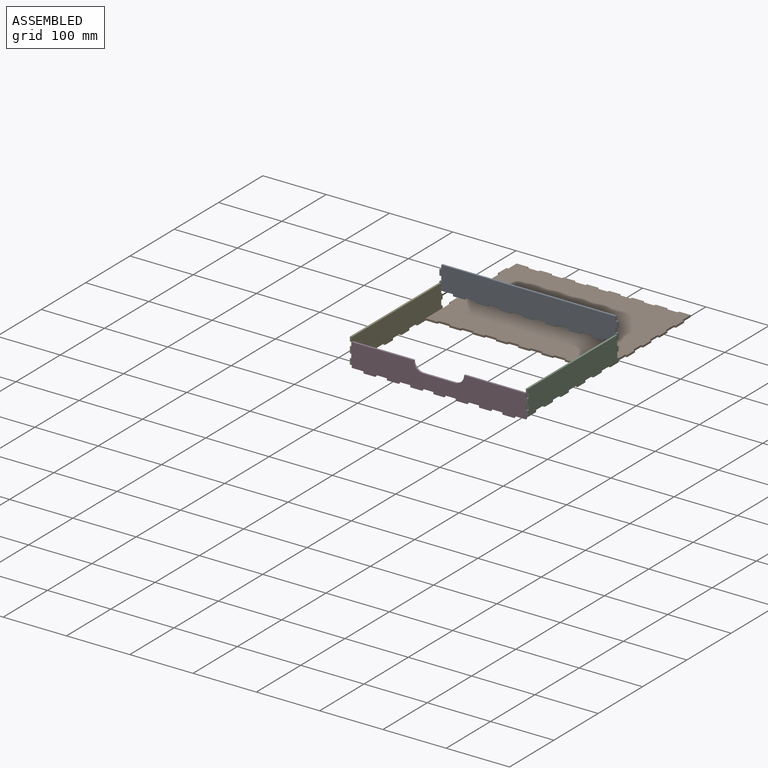
[diagram: assembled view]
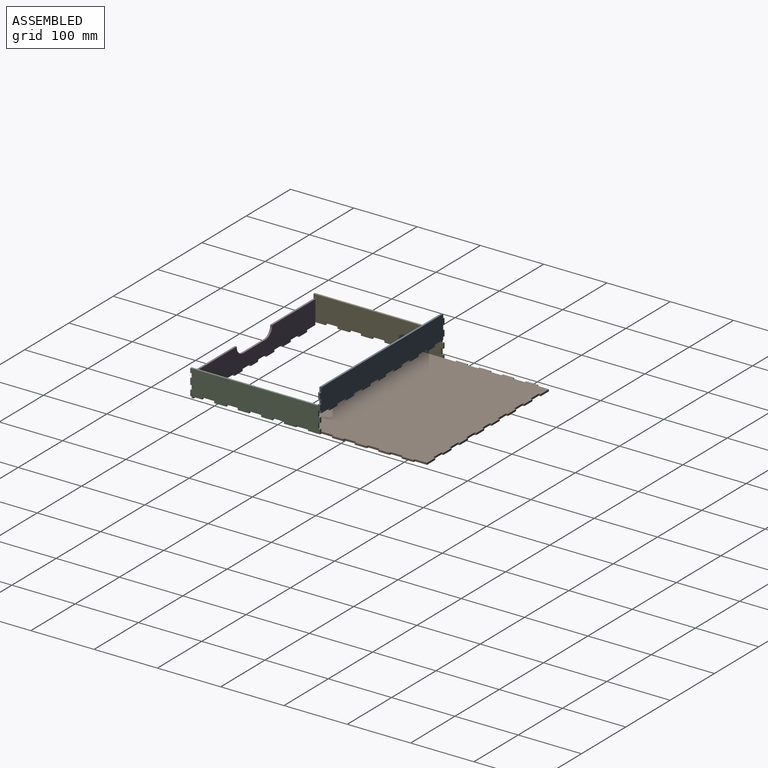
[diagram: assembled view, second angle]
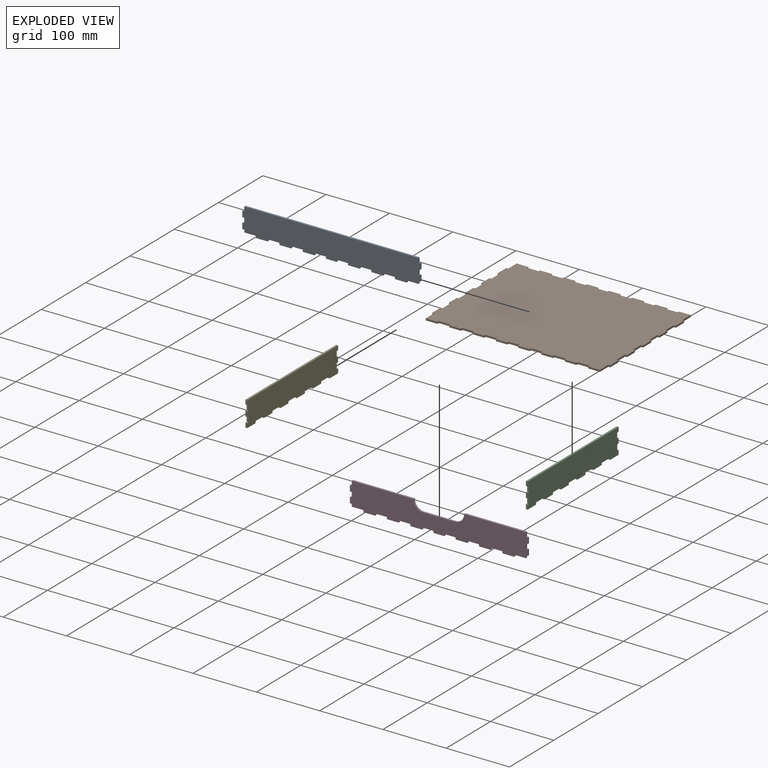
[diagram: exploded view]
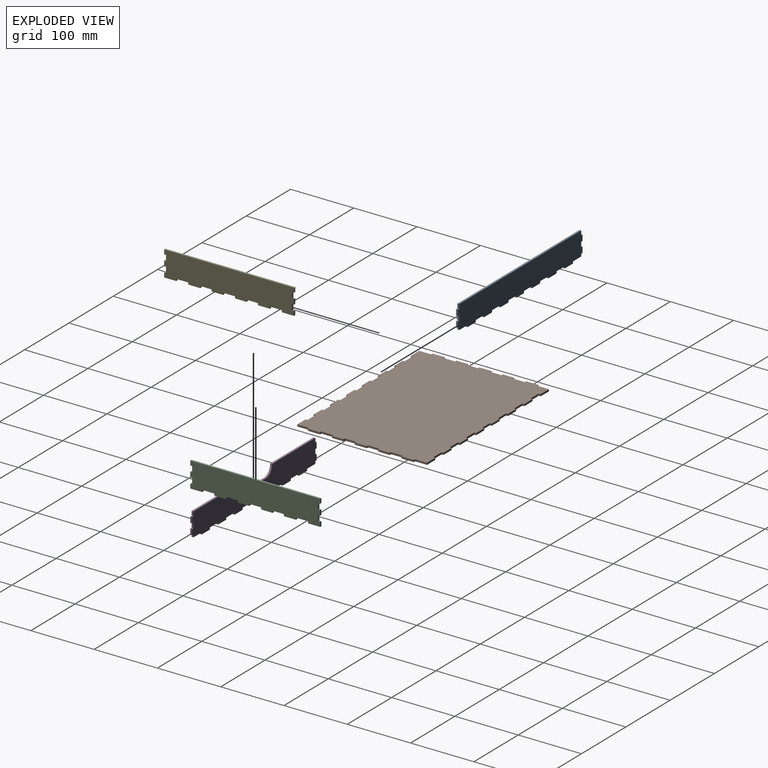
[diagram: exploded view, second angle]
ASSEMBLY  parts=5 mates=4
PART A: 50 faces, bbox 281x3x40 mm
  f0: plane 3x3mm, normal (1,0,0), area 9mm2, adj f1,f47,f48,f49
  f1: plane 18.5x3mm, normal (0,0,-1), area 55.5mm2, adj f0,f2,f48,f49
  f2: plane 4x3mm, normal (1,0,0), area 12mm2, adj f1,f3,f48,f49
  f3: plane 3x3mm, normal (0,0,-1), area 9mm2, adj f2,f4,f48,f49
  f4: plane 9x3mm, normal (1,0,0), area 27mm2, adj f3,f5,f48,f49
  f5: plane 3x3mm, normal (0,0,1), area 9mm2, adj f4,f6,f48,f49
  f6: plane 8x3mm, normal (1,0,0), area 24mm2, adj f5,f7,f48,f49
  f7: plane 3x3mm, normal (0,0,-1), area 9mm2, adj f6,f8,f48,f49
  f8: plane 9x3mm, normal (1,0,0), area 27mm2, adj f7,f9,f48,f49
  f9: plane 3x3mm, normal (0,0,1), area 9mm2, adj f8,f10,f48,f49
  f10: plane 7x3mm, normal (1,0,0), area 21mm2, adj f9,f11,f48,f49
  f11: plane 275x3mm, normal (0,0,1), area 825mm2, adj f10,f12,f48,f49
  f12: plane 7x3mm, normal (-1,0,0), area 21mm2, adj f11,f13,f48,f49
  f13: plane 3x3mm, normal (0,0,1), area 9mm2, adj f12,f14,f48,f49
  f14: plane 9x3mm, normal (-1,0,0), area 27mm2, adj f13,f15,f48,f49
  f15: plane 3x3mm, normal (0,0,-1), area 9mm2, adj f14,f16,f48,f49
  f16: plane 8x3mm, normal (-1,0,0), area 24mm2, adj f15,f17,f48,f49
  f17: plane 3x3mm, normal (0,0,1), area 9mm2, adj f16,f18,f48,f49
  f18: plane 9x3mm, normal (-1,0,0), area 27mm2, adj f17,f19,f48,f49
  f19: plane 3x3mm, normal (0,0,-1), area 9mm2, adj f18,f20,f48,f49
  f20: plane 4x3mm, normal (-1,0,0), area 12mm2, adj f19,f21,f48,f49
  f21: plane 18.5x3mm, normal (0,0,-1), area 55.5mm2, adj f20,f22,f48,f49
  f22: plane 3x3mm, normal (-1,0,0), area 9mm2, adj f21,f23,f48,f49
  f23: plane 18.5x3mm, normal (0,0,-1), area 55.5mm2, adj f22,f24,f48,f49
  f24: plane 3x3mm, normal (1,0,0), area 9mm2, adj f23,f25,f48,f49
  f25: plane 18.5x3mm, normal (0,0,-1), area 55.5mm2, adj f24,f26,f48,f49
  f26: plane 3x3mm, normal (-1,0,0), area 9mm2, adj f25,f27,f48,f49
  f27: plane 18.5x3mm, normal (0,0,-1), area 55.5mm2, adj f26,f28,f48,f49
  f28: plane 3x3mm, normal (1,0,0), area 9mm2, adj f27,f29,f48,f49
  f29: plane 18.5x3mm, normal (0,0,-1), area 55.5mm2, adj f28,f30,f48,f49
  f30: plane 3x3mm, normal (-1,0,0), area 9mm2, adj f29,f31,f48,f49
  f31: plane 18.5x3mm, normal (0,0,-1), area 55.5mm2, adj f30,f32,f48,f49
  f32: plane 3x3mm, normal (1,0,0), area 9mm2, adj f31,f33,f48,f49
  f33: plane 18x3mm, normal (0,0,-1), area 54mm2, adj f32,f34,f48,f49
  f34: plane 3x3mm, normal (-1,0,0), area 9mm2, adj f33,f35,f48,f49
  f35: plane 17x3mm, normal (0,0,-1), area 51mm2, adj f34,f36,f48,f49
  f36: plane 3x3mm, normal (1,0,0), area 9mm2, adj f35,f37,f48,f49
  f37: plane 18x3mm, normal (0,0,-1), area 54mm2, adj f36,f38,f48,f49
  f38: plane 3x3mm, normal (-1,0,0), area 9mm2, adj f37,f39,f48,f49
  f39: plane 18.5x3mm, normal (0,0,-1), area 55.5mm2, adj f38,f40,f48,f49
  f40: plane 3x3mm, normal (1,0,0), area 9mm2, adj f39,f41,f48,f49
  f41: plane 18.5x3mm, normal (0,0,-1), area 55.5mm2, adj f40,f42,f48,f49
  f42: plane 3x3mm, normal (-1,0,0), area 9mm2, adj f41,f43,f48,f49
  f43: plane 18.5x3mm, normal (0,0,-1), area 55.5mm2, adj f42,f44,f48,f49
  f44: plane 3x3mm, normal (1,0,0), area 9mm2, adj f43,f45,f48,f49
  f45: plane 18.5x3mm, normal (0,0,-1), area 55.5mm2, adj f44,f46,f48,f49
  f46: plane 3x3mm, normal (-1,0,0), area 9mm2, adj f45,f47,f48,f49
  f47: plane 18.5x3mm, normal (0,0,-1), area 55.5mm2, adj f0,f46,f48,f49
  f48: plane 281x40mm, normal (0,-1,0), area 10667mm2, adj f0,f1,f2,f3,f4,f5,f6,f7
  f49: plane 281x40mm, normal (0,1,0), area 10667mm2, adj f0,f1,f2,f3,f4,f5,f6,f7
PART B: 102 faces, bbox 281x205x3 mm
  f0: plane 19x3mm, normal (-1,0,0), area 57mm2, adj f1,f99,f100,f101
  f1: plane 3x3mm, normal (0,1,0), area 9mm2, adj f0,f2,f100,f101
  f2: plane 19x3mm, normal (-1,0,0), area 57mm2, adj f1,f3,f100,f101
  f3: plane 3x3mm, normal (0,-1,0), area 9mm2, adj f2,f4,f100,f101
  f4: plane 19x3mm, normal (-1,0,0), area 57mm2, adj f3,f5,f100,f101
  f5: plane 3x3mm, normal (0,1,0), area 9mm2, adj f4,f6,f100,f101
  f6: plane 18x3mm, normal (-1,0,0), area 54mm2, adj f5,f7,f100,f101
  f7: plane 3x3mm, normal (0,-1,0), area 9mm2, adj f6,f8,f100,f101
  f8: plane 18x3mm, normal (-1,0,0), area 54mm2, adj f7,f9,f100,f101
  f9: plane 3x3mm, normal (0,1,0), area 9mm2, adj f8,f10,f100,f101
  f10: plane 19x3mm, normal (-1,0,0), area 57mm2, adj f9,f11,f100,f101
  f11: plane 3x3mm, normal (0,-1,0), area 9mm2, adj f10,f12,f100,f101
  f12: plane 18x3mm, normal (-1,0,0), area 54mm2, adj f11,f13,f100,f101
  f13: plane 3x3mm, normal (0,1,0), area 9mm2, adj f12,f14,f100,f101
  f14: plane 18x3mm, normal (-1,0,0), area 54mm2, adj f13,f15,f100,f101
  f15: plane 3x3mm, normal (0,-1,0), area 9mm2, adj f14,f16,f100,f101
  f16: plane 19x3mm, normal (-1,0,0), area 57mm2, adj f15,f17,f100,f101
  f17: plane 3x3mm, normal (0,1,0), area 9mm2, adj f16,f18,f100,f101
  f18: plane 19x3mm, normal (-1,0,0), area 57mm2, adj f17,f19,f100,f101
  f19: plane 3x3mm, normal (0,-1,0), area 9mm2, adj f18,f20,f100,f101
  f20: plane 19x3mm, normal (-1,0,0), area 57mm2, adj f19,f21,f100,f101
  f21: plane 18.5x3mm, normal (0,-1,0), area 55.5mm2, adj f20,f22,f100,f101
  f22: plane 3x3mm, normal (1,0,0), area 9mm2, adj f21,f23,f100,f101
  f23: plane 18.5x3mm, normal (0,-1,0), area 55.5mm2, adj f22,f24,f100,f101
  f24: plane 3x3mm, normal (-1,0,0), area 9mm2, adj f23,f25,f100,f101
  f25: plane 18.5x3mm, normal (0,-1,0), area 55.5mm2, adj f24,f26,f100,f101
  f26: plane 3x3mm, normal (1,0,0), area 9mm2, adj f25,f27,f100,f101
  f27: plane 18.5x3mm, normal (0,-1,0), area 55.5mm2, adj f26,f28,f100,f101
  f28: plane 3x3mm, normal (-1,0,0), area 9mm2, adj f27,f29,f100,f101
  f29: plane 18.5x3mm, normal (0,-1,0), area 55.5mm2, adj f28,f30,f100,f101
  f30: plane 3x3mm, normal (1,0,0), area 9mm2, adj f29,f31,f100,f101
  f31: plane 18.5x3mm, normal (0,-1,0), area 55.5mm2, adj f30,f32,f100,f101
  f32: plane 3x3mm, normal (-1,0,0), area 9mm2, adj f31,f33,f100,f101
  f33: plane 18x3mm, normal (0,-1,0), area 54mm2, adj f32,f34,f100,f101
  f34: plane 3x3mm, normal (1,0,0), area 9mm2, adj f33,f35,f100,f101
  f35: plane 17x3mm, normal (0,-1,0), area 51mm2, adj f34,f36,f100,f101
  f36: plane 3x3mm, normal (-1,0,0), area 9mm2, adj f35,f37,f100,f101
  f37: plane 18x3mm, normal (0,-1,0), area 54mm2, adj f36,f38,f100,f101
  f38: plane 3x3mm, normal (1,0,0), area 9mm2, adj f37,f39,f100,f101
  f39: plane 18.5x3mm, normal (0,-1,0), area 55.5mm2, adj f38,f40,f100,f101
  f40: plane 3x3mm, normal (-1,0,0), area 9mm2, adj f39,f41,f100,f101
  f41: plane 18.5x3mm, normal (0,-1,0), area 55.5mm2, adj f40,f42,f100,f101
  f42: plane 3x3mm, normal (1,0,0), area 9mm2, adj f41,f43,f100,f101
  f43: plane 18.5x3mm, normal (0,-1,0), area 55.5mm2, adj f42,f44,f100,f101
  f44: plane 3x3mm, normal (-1,0,0), area 9mm2, adj f43,f45,f100,f101
  f45: plane 18.5x3mm, normal (0,-1,0), area 55.5mm2, adj f44,f46,f100,f101
  f46: plane 3x3mm, normal (1,0,0), area 9mm2, adj f45,f47,f100,f101
  f47: plane 18.5x3mm, normal (0,-1,0), area 55.5mm2, adj f46,f48,f100,f101
  f48: plane 3x3mm, normal (-1,0,0), area 9mm2, adj f47,f49,f100,f101
  f49: plane 18.5x3mm, normal (0,-1,0), area 55.5mm2, adj f48,f50,f100,f101
  f50: plane 19x3mm, normal (1,0,0), area 57mm2, adj f49,f51,f100,f101
  f51: plane 3x3mm, normal (0,-1,0), area 9mm2, adj f50,f52,f100,f101
  f52: plane 19x3mm, normal (1,0,0), area 57mm2, adj f51,f53,f100,f101
  f53: plane 3x3mm, normal (0,1,0), area 9mm2, adj f52,f54,f100,f101
  f54: plane 19x3mm, normal (1,0,0), area 57mm2, adj f53,f55,f100,f101
  f55: plane 3x3mm, normal (0,-1,0), area 9mm2, adj f54,f56,f100,f101
  f56: plane 18x3mm, normal (1,0,0), area 54mm2, adj f55,f57,f100,f101
  f57: plane 3x3mm, normal (0,1,0), area 9mm2, adj f56,f58,f100,f101
  f58: plane 18x3mm, normal (1,0,0), area 54mm2, adj f57,f59,f100,f101
  f59: plane 3x3mm, normal (0,-1,0), area 9mm2, adj f58,f60,f100,f101
  f60: plane 19x3mm, normal (1,0,0), area 57mm2, adj f59,f61,f100,f101
  f61: plane 3x3mm, normal (0,1,0), area 9mm2, adj f60,f62,f100,f101
  f62: plane 18x3mm, normal (1,0,0), area 54mm2, adj f61,f63,f100,f101
  f63: plane 3x3mm, normal (0,-1,0), area 9mm2, adj f62,f64,f100,f101
  f64: plane 18x3mm, normal (1,0,0), area 54mm2, adj f63,f65,f100,f101
  f65: plane 3x3mm, normal (0,1,0), area 9mm2, adj f64,f66,f100,f101
  f66: plane 19x3mm, normal (1,0,0), area 57mm2, adj f65,f67,f100,f101
  f67: plane 3x3mm, normal (0,-1,0), area 9mm2, adj f66,f68,f100,f101
  f68: plane 19x3mm, normal (1,0,0), area 57mm2, adj f67,f69,f100,f101
  f69: plane 3x3mm, normal (0,1,0), area 9mm2, adj f68,f70,f100,f101
  f70: plane 19x3mm, normal (1,0,0), area 57mm2, adj f69,f71,f100,f101
  f71: plane 18.5x3mm, normal (0,1,0), area 55.5mm2, adj f70,f72,f100,f101
  f72: plane 3x3mm, normal (-1,0,0), area 9mm2, adj f71,f73,f100,f101
  f73: plane 18.5x3mm, normal (0,1,0), area 55.5mm2, adj f72,f74,f100,f101
  f74: plane 3x3mm, normal (1,0,0), area 9mm2, adj f73,f75,f100,f101
  f75: plane 18.5x3mm, normal (0,1,0), area 55.5mm2, adj f74,f76,f100,f101
  f76: plane 3x3mm, normal (-1,0,0), area 9mm2, adj f75,f77,f100,f101
  f77: plane 18.5x3mm, normal (0,1,0), area 55.5mm2, adj f76,f78,f100,f101
  f78: plane 3x3mm, normal (1,0,0), area 9mm2, adj f77,f79,f100,f101
  f79: plane 18.5x3mm, normal (0,1,0), area 55.5mm2, adj f78,f80,f100,f101
  f80: plane 3x3mm, normal (-1,0,0), area 9mm2, adj f79,f81,f100,f101
  f81: plane 18.5x3mm, normal (0,1,0), area 55.5mm2, adj f80,f82,f100,f101
  f82: plane 3x3mm, normal (1,0,0), area 9mm2, adj f81,f83,f100,f101
  f83: plane 18x3mm, normal (0,1,0), area 54mm2, adj f82,f84,f100,f101
  f84: plane 3x3mm, normal (-1,0,0), area 9mm2, adj f83,f85,f100,f101
  f85: plane 17x3mm, normal (0,1,0), area 51mm2, adj f84,f86,f100,f101
  f86: plane 3x3mm, normal (1,0,0), area 9mm2, adj f85,f87,f100,f101
  f87: plane 18x3mm, normal (0,1,0), area 54mm2, adj f86,f88,f100,f101
  f88: plane 3x3mm, normal (-1,0,0), area 9mm2, adj f87,f89,f100,f101
  f89: plane 18.5x3mm, normal (0,1,0), area 55.5mm2, adj f88,f90,f100,f101
  f90: plane 3x3mm, normal (1,0,0), area 9mm2, adj f89,f91,f100,f101
  f91: plane 18.5x3mm, normal (0,1,0), area 55.5mm2, adj f90,f92,f100,f101
  f92: plane 3x3mm, normal (-1,0,0), area 9mm2, adj f91,f93,f100,f101
  f93: plane 18.5x3mm, normal (0,1,0), area 55.5mm2, adj f92,f94,f100,f101
  f94: plane 3x3mm, normal (1,0,0), area 9mm2, adj f93,f95,f100,f101
  f95: plane 18.5x3mm, normal (0,1,0), area 55.5mm2, adj f94,f96,f100,f101
  f96: plane 3x3mm, normal (-1,0,0), area 9mm2, adj f95,f97,f100,f101
  f97: plane 18.5x3mm, normal (0,1,0), area 55.5mm2, adj f96,f98,f100,f101
  f98: plane 3x3mm, normal (1,0,0), area 9mm2, adj f97,f99,f100,f101
  f99: plane 18.5x3mm, normal (0,1,0), area 55.5mm2, adj f0,f98,f100,f101
  f100: plane 281x205mm, normal (0,0,1), area 56165mm2, adj f0,f1,f2,f3,f4,f5,f6,f7
  f101: plane 281x205mm, normal (0,0,-1), area 56165mm2, adj f0,f1,f2,f3,f4,f5,f6,f7
PART C: 42 faces, bbox 3x205x40 mm
  f0: plane 19x3mm, normal (0,0,-1), area 57mm2, adj f1,f39,f40,f41
  f1: plane 3x3mm, normal (0,-1,0), area 9mm2, adj f0,f2,f40,f41
  f2: plane 19x3mm, normal (0,0,-1), area 57mm2, adj f1,f3,f40,f41
  f3: plane 3x3mm, normal (0,1,0), area 9mm2, adj f2,f4,f40,f41
  f4: plane 18x3mm, normal (0,0,-1), area 54mm2, adj f3,f5,f40,f41
  f5: plane 3x3mm, normal (0,-1,0), area 9mm2, adj f4,f6,f40,f41
  f6: plane 18x3mm, normal (0,0,-1), area 54mm2, adj f5,f7,f40,f41
  f7: plane 3x3mm, normal (0,1,0), area 9mm2, adj f6,f8,f40,f41
  f8: plane 19x3mm, normal (0,0,-1), area 57mm2, adj f7,f9,f40,f41
  f9: plane 3x3mm, normal (0,-1,0), area 9mm2, adj f8,f10,f40,f41
  f10: plane 18x3mm, normal (0,0,-1), area 54mm2, adj f9,f11,f40,f41
  f11: plane 3x3mm, normal (0,1,0), area 9mm2, adj f10,f12,f40,f41
  f12: plane 18x3mm, normal (0,0,-1), area 54mm2, adj f11,f13,f40,f41
  f13: plane 3x3mm, normal (0,-1,0), area 9mm2, adj f12,f14,f40,f41
  f14: plane 19x3mm, normal (0,0,-1), area 57mm2, adj f13,f15,f40,f41
  f15: plane 3x3mm, normal (0,1,0), area 9mm2, adj f14,f16,f40,f41
  f16: plane 19x3mm, normal (0,0,-1), area 57mm2, adj f15,f17,f40,f41
  f17: plane 3x3mm, normal (0,-1,0), area 9mm2, adj f16,f18,f40,f41
  f18: plane 19x3mm, normal (0,0,-1), area 57mm2, adj f17,f19,f40,f41
  f19: plane 7x3mm, normal (0,1,0), area 21mm2, adj f18,f20,f40,f41
  f20: plane 3x3mm, normal (0,0,1), area 9mm2, adj f19,f21,f40,f41
  f21: plane 9x3mm, normal (0,1,0), area 27mm2, adj f20,f22,f40,f41
  f22: plane 3x3mm, normal (0,0,-1), area 9mm2, adj f21,f23,f40,f41
  f23: plane 8x3mm, normal (0,1,0), area 24mm2, adj f22,f24,f40,f41
  f24: plane 3x3mm, normal (0,0,1), area 9mm2, adj f23,f25,f40,f41
  f25: plane 9x3mm, normal (0,1,0), area 27mm2, adj f24,f26,f40,f41
  f26: plane 3x3mm, normal (0,0,-1), area 9mm2, adj f25,f27,f40,f41
  f27: plane 7x3mm, normal (0,1,0), area 21mm2, adj f26,f28,f40,f41
  f28: plane 205x3mm, normal (0,0,1), area 615mm2, adj f27,f29,f40,f41
  f29: plane 7x3mm, normal (0,-1,0), area 21mm2, adj f28,f30,f40,f41
  f30: plane 3x3mm, normal (0,0,-1), area 9mm2, adj f29,f31,f40,f41
  f31: plane 9x3mm, normal (0,-1,0), area 27mm2, adj f30,f32,f40,f41
  f32: plane 3x3mm, normal (0,0,1), area 9mm2, adj f31,f33,f40,f41
  f33: plane 8x3mm, normal (0,-1,0), area 24mm2, adj f32,f34,f40,f41
  f34: plane 3x3mm, normal (0,0,-1), area 9mm2, adj f33,f35,f40,f41
  f35: plane 9x3mm, normal (0,-1,0), area 27mm2, adj f34,f36,f40,f41
  f36: plane 3x3mm, normal (0,0,1), area 9mm2, adj f35,f37,f40,f41
  f37: plane 7x3mm, normal (0,-1,0), area 21mm2, adj f36,f38,f40,f41
  f38: plane 19x3mm, normal (0,0,-1), area 57mm2, adj f37,f39,f40,f41
  f39: plane 3x3mm, normal (0,1,0), area 9mm2, adj f0,f38,f40,f41
  f40: plane 205x40mm, normal (1,0,0), area 7813mm2, adj f0,f1,f2,f3,f4,f5,f6,f7
  f41: plane 205x40mm, normal (-1,0,0), area 7813mm2, adj f0,f1,f2,f3,f4,f5,f6,f7
PART D: 54 faces, bbox 281x3x40 mm
  f0: plane 3x3mm, normal (-1,0,0), area 9mm2, adj f1,f51,f52,f53
  f1: plane 18.5x3mm, normal (0,0,-1), area 55.5mm2, adj f0,f2,f52,f53
  f2: plane 3x3mm, normal (1,0,0), area 9mm2, adj f1,f3,f52,f53
  f3: plane 18.5x3mm, normal (0,0,-1), area 55.5mm2, adj f2,f4,f52,f53
  f4: plane 3x3mm, normal (-1,0,0), area 9mm2, adj f3,f5,f52,f53
  f5: plane 18.5x3mm, normal (0,0,-1), area 55.5mm2, adj f4,f6,f52,f53
  f6: plane 3x3mm, normal (1,0,0), area 9mm2, adj f5,f7,f52,f53
  f7: plane 18.5x3mm, normal (0,0,-1), area 55.5mm2, adj f6,f8,f52,f53
  f8: plane 3x3mm, normal (-1,0,0), area 9mm2, adj f7,f9,f52,f53
  f9: plane 18.5x3mm, normal (0,0,-1), area 55.5mm2, adj f8,f10,f52,f53
  f10: plane 3x3mm, normal (1,0,0), area 9mm2, adj f9,f11,f52,f53
  f11: plane 18.5x3mm, normal (0,0,-1), area 55.5mm2, adj f10,f12,f52,f53
  f12: plane 4x3mm, normal (1,0,0), area 12mm2, adj f11,f13,f52,f53
  f13: plane 3x3mm, normal (0,0,-1), area 9mm2, adj f12,f14,f52,f53
  f14: plane 9x3mm, normal (1,0,0), area 27mm2, adj f13,f15,f52,f53
  f15: plane 3x3mm, normal (0,0,1), area 9mm2, adj f14,f16,f52,f53
  f16: plane 8x3mm, normal (1,0,0), area 24mm2, adj f15,f17,f52,f53
  f17: plane 3x3mm, normal (0,0,-1), area 9mm2, adj f16,f18,f52,f53
  f18: plane 9x3mm, normal (1,0,0), area 27mm2, adj f17,f19,f52,f53
  f19: plane 3x3mm, normal (0,0,1), area 9mm2, adj f18,f20,f52,f53
  f20: plane 7x3mm, normal (1,0,0), area 21mm2, adj f19,f21,f52,f53
  f21: plane 97.5x3mm, normal (0,0,1), area 292.5mm2, adj f20,f22,f52,f53
  f22: cylinder r=15mm len=15mm, axis (0,-1,0), area 70.7mm2, adj f21,f23,f52,f53
  f23: plane 50x3mm, normal (0,0,1), area 150mm2, adj f22,f24,f52,f53
  f24: cylinder r=15mm len=15mm, axis (0,-1,0), area 70.7mm2, adj f23,f25,f52,f53
  f25: plane 97.5x3mm, normal (0,0,1), area 292.5mm2, adj f24,f26,f52,f53
  f26: plane 7x3mm, normal (-1,0,0), area 21mm2, adj f25,f27,f52,f53
  f27: plane 3x3mm, normal (0,0,1), area 9mm2, adj f26,f28,f52,f53
  f28: plane 9x3mm, normal (-1,0,0), area 27mm2, adj f27,f29,f52,f53
  f29: plane 3x3mm, normal (0,0,-1), area 9mm2, adj f28,f30,f52,f53
  f30: plane 8x3mm, normal (-1,0,0), area 24mm2, adj f29,f31,f52,f53
  f31: plane 3x3mm, normal (0,0,1), area 9mm2, adj f30,f32,f52,f53
  f32: plane 9x3mm, normal (-1,0,0), area 27mm2, adj f31,f33,f52,f53
  f33: plane 3x3mm, normal (0,0,-1), area 9mm2, adj f32,f34,f52,f53
  f34: plane 4x3mm, normal (-1,0,0), area 12mm2, adj f33,f35,f52,f53
  f35: plane 18.5x3mm, normal (0,0,-1), area 55.5mm2, adj f34,f36,f52,f53
  f36: plane 3x3mm, normal (-1,0,0), area 9mm2, adj f35,f37,f52,f53
  f37: plane 18.5x3mm, normal (0,0,-1), area 55.5mm2, adj f36,f38,f52,f53
  f38: plane 3x3mm, normal (1,0,0), area 9mm2, adj f37,f39,f52,f53
  f39: plane 18.5x3mm, normal (0,0,-1), area 55.5mm2, adj f38,f40,f52,f53
  f40: plane 3x3mm, normal (-1,0,0), area 9mm2, adj f39,f41,f52,f53
  f41: plane 18.5x3mm, normal (0,0,-1), area 55.5mm2, adj f40,f42,f52,f53
  f42: plane 3x3mm, normal (1,0,0), area 9mm2, adj f41,f43,f52,f53
  f43: plane 18.5x3mm, normal (0,0,-1), area 55.5mm2, adj f42,f44,f52,f53
  f44: plane 3x3mm, normal (-1,0,0), area 9mm2, adj f43,f45,f52,f53
  f45: plane 18.5x3mm, normal (0,0,-1), area 55.5mm2, adj f44,f46,f52,f53
  f46: plane 3x3mm, normal (1,0,0), area 9mm2, adj f45,f47,f52,f53
  f47: plane 18x3mm, normal (0,0,-1), area 54mm2, adj f46,f48,f52,f53
  f48: plane 3x3mm, normal (-1,0,0), area 9mm2, adj f47,f49,f52,f53
  f49: plane 17x3mm, normal (0,0,-1), area 51mm2, adj f48,f50,f52,f53
  f50: plane 3x3mm, normal (1,0,0), area 9mm2, adj f49,f51,f52,f53
  f51: plane 18x3mm, normal (0,0,-1), area 54mm2, adj f0,f50,f52,f53
  f52: plane 281x40mm, normal (0,-1,0), area 9563.6mm2, adj f0,f1,f2,f3,f4,f5,f6,f7
  f53: plane 281x40mm, normal (0,1,0), area 9563.6mm2, adj f0,f1,f2,f3,f4,f5,f6,f7
PART E: same geometry as C
PLACE A t=(25.53,123.1,73.32)mm
PLACE B t=(25.53,187.6,27.32)mm
PLACE C t=(163.03,20.6,47.32)mm
PLACE D t=(25.53,-78.9,40.32)mm
PLACE E t=(-114.97,20.6,47.32)mm
MATE fastened A.f4 <-> C.f40  axis (1,0,0) through (166.03,120.1,60.32)mm
MATE fastened E.f19 <-> B.f17  axis (0,-1,0) through (-114.97,123.1,27.32)mm
MATE fastened D.f13 <-> C.f38  axis (0,0,1) through (166.03,-81.9,27.32)mm
MATE fastened B.f53 <-> C.f19  axis (0,1,0) through (166.03,123.1,27.32)mm
